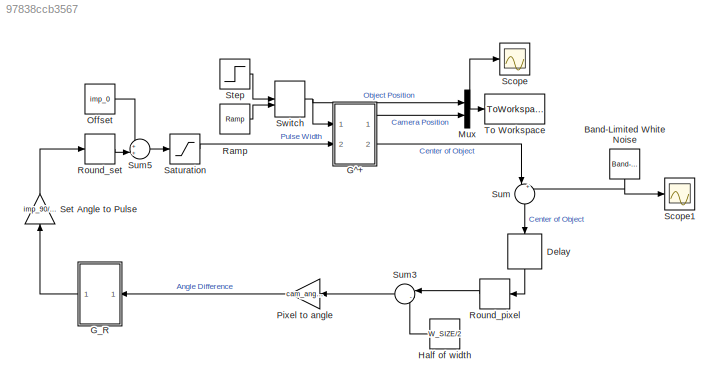
MODEL slx_97838ccb3567
KIND model
CONFIG AbsTol = auto
CONFIG FixedStep = auto
CONFIG MaxStep = 1e-3
CONFIG MinStep = auto
CONFIG RelTol = 1e-3
CONFIG SampleTimeConstraint = Unconstrained
CONFIG Solver = ode45
CONFIG SolverMode = SingleTasking
CONFIG SolverName = ode45
CONFIG StartTime = 0.0
CONFIG StopTime = 10.0
BLOCK [Reference] Band-Limited White Noise  REF=simulink/Sources/Band-Limited
White Noise
  Commented = on
  Ports = [0, 1]
  SourceBlock = simulink/Sources/Band-Limited\nWhite Noise
  SourceType = Band-Limited White Noise.
BLOCK [Delay] Delay
  Commented = through
  DelayLength = 1
  InputPortMap = u0
  Ports = [1, 1]
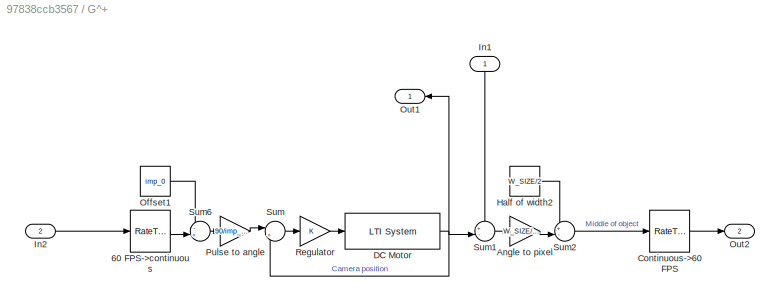
BLOCK [SubSystem] G^+
  Ports = [2, 2]
  RequestExecContextInheritance = off
  Variant = off
BLOCK [RateTransition] G^+/60 FPS->continuous
  Deterministic = off
  X0 = 6000
BLOCK [Gain] G^+/Angle to pixel
  Gain = W_SIZE/cam_angle
  OutDataTypeStr = Inherit: Inherit via internal rule
  ParamDataTypeStr = Inherit: Inherit via internal rule
  SaturateOnIntegerOverflow = off
BLOCK [RateTransition] G^+/Continuous->60 FPS
  OutPortSampleTime = 1/60
  X0 = 640
BLOCK [Reference] G^+/DC Motor  REF=cstblocks/LTI System
  Ports = [1, 1]
  SourceBlock = cstblocks/LTI System
  SourceType = LTI Block
BLOCK [Constant] G^+/Half of width2
  Value = W_SIZE/2
BLOCK [Inport] G^+/In1
  IconDisplay = Port number
BLOCK [Inport] G^+/In2
  IconDisplay = Port number
  Port = 2
BLOCK [Constant] G^+/Offset1
  Value = imp_0
BLOCK [Outport] G^+/Out1
  IconDisplay = Port number
BLOCK [Outport] G^+/Out2
  IconDisplay = Port number
  Port = 2
BLOCK [Gain] G^+/Pulse to angle
  Gain = 90/imp_90
  OutDataTypeStr = Inherit: Inherit via internal rule
  ParamDataTypeStr = Inherit: Inherit via internal rule
  SaturateOnIntegerOverflow = off
BLOCK [Gain] G^+/Regulator
  Gain = K
  OutDataTypeStr = Inherit: Inherit via internal rule
  ParamDataTypeStr = Inherit: Inherit via internal rule
  SaturateOnIntegerOverflow = off
BLOCK [Sum] G^+/Sum
  IconShape = round
  InputSameDT = off
  Inputs = |+-
  OutDataTypeStr = Inherit: Inherit via internal rule
  Ports = [2, 1]
  SaturateOnIntegerOverflow = off
BLOCK [Sum] G^+/Sum1
  IconShape = round
  InputSameDT = off
  Inputs = +-|
  OutDataTypeStr = Inherit: Inherit via internal rule
  Ports = [2, 1]
  SaturateOnIntegerOverflow = off
BLOCK [Sum] G^+/Sum2
  IconShape = round
  InputSameDT = off
  Inputs = +-|
  OutDataTypeStr = Inherit: Inherit via internal rule
  Ports = [2, 1]
  SaturateOnIntegerOverflow = off
BLOCK [Sum] G^+/Sum6
  IconShape = round
  InputSameDT = off
  Inputs = -+|
  OutDataTypeStr = Inherit: Inherit via internal rule
  Ports = [2, 1]
  SaturateOnIntegerOverflow = off
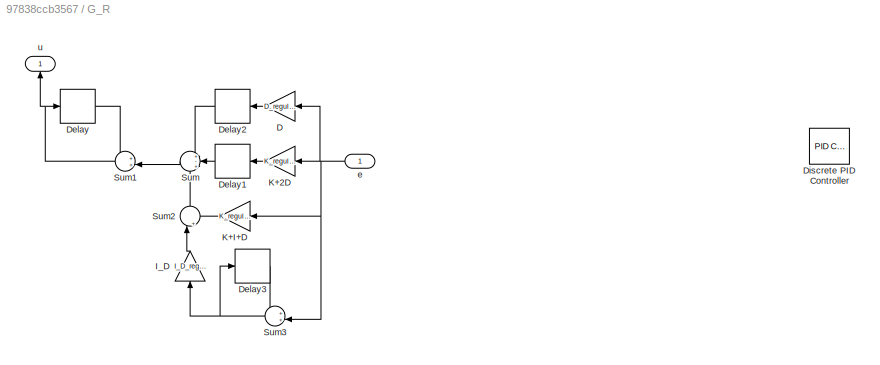
BLOCK [SubSystem] G_R
  Ports = [1, 1]
  RequestExecContextInheritance = off
  Variant = off
BLOCK [Gain] G_R/D
  Gain = D_regulator
  OutDataTypeStr = Inherit: Inherit via internal rule
  ParamDataTypeStr = Inherit: Inherit via internal rule
  SaturateOnIntegerOverflow = off
BLOCK [Delay] G_R/Delay
  DelayLength = 1
  InputPortMap = u0
  Ports = [1, 1]
BLOCK [Delay] G_R/Delay1
  DelayLength = 1
  InputPortMap = u0
  Ports = [1, 1]
BLOCK [Delay] G_R/Delay2
  InputPortMap = u0
  Ports = [1, 1]
BLOCK [Delay] G_R/Delay3
  Commented = on
  DelayLength = 1
  InputPortMap = u0
  Ports = [1, 1]
BLOCK [Reference] G_R/Discrete PID Controller  REF=simulink/Continuous/PID Controller
  Commented = on
  Ports = [1, 1]
  SourceBlock = simulink/Continuous/PID Controller
  SourceType = PID 1dof
BLOCK [Gain] G_R/I_D
  Commented = on
  Gain = I_D_regulator
  OutDataTypeStr = Inherit: Inherit via internal rule
  ParamDataTypeStr = Inherit: Inherit via internal rule
  SaturateOnIntegerOverflow = off
BLOCK [Gain] G_R/K+2D
  Gain = K_regulator+2*D_regulator
  OutDataTypeStr = Inherit: Inherit via internal rule
  ParamDataTypeStr = Inherit: Inherit via internal rule
  SaturateOnIntegerOverflow = off
BLOCK [Gain] G_R/K+I+D
  Gain = K_regulator+I_regulator+D_regulator
  OutDataTypeStr = Inherit: Inherit via internal rule
  ParamDataTypeStr = Inherit: Inherit via internal rule
  SaturateOnIntegerOverflow = off
BLOCK [Sum] G_R/Sum
  IconShape = round
  InputSameDT = off
  Inputs = +-+
  OutDataTypeStr = Inherit: Inherit via internal rule
  Ports = [3, 1]
  SaturateOnIntegerOverflow = off
BLOCK [Sum] G_R/Sum1
  IconShape = round
  InputSameDT = off
  Inputs = ++|
  OutDataTypeStr = Inherit: Inherit via internal rule
  Ports = [2, 1]
  SaturateOnIntegerOverflow = off
BLOCK [Sum] G_R/Sum2
  IconShape = round
  InputSameDT = off
  Inputs = |++
  OutDataTypeStr = Inherit: Inherit via internal rule
  Ports = [2, 1]
  SaturateOnIntegerOverflow = off
BLOCK [Sum] G_R/Sum3
  Commented = on
  IconShape = round
  InputSameDT = off
  Inputs = ++|
  OutDataTypeStr = Inherit: Inherit via internal rule
  Ports = [2, 1]
  SaturateOnIntegerOverflow = off
BLOCK [Inport] G_R/e
  IconDisplay = Port number
BLOCK [Outport] G_R/u
  IconDisplay = Port number
BLOCK [Constant] Half of width
  Value = W_SIZE/2
BLOCK [Mux] Mux
  DisplayOption = bar
  Inputs = 2
  Ports = [2, 1]
BLOCK [Constant] Offset
  Value = imp_0
BLOCK [Gain] Pixel to angle
  Gain = cam_angle/W_SIZE
  OutDataTypeStr = Inherit: Inherit via internal rule
  ParamDataTypeStr = Inherit: Inherit via internal rule
  SaturateOnIntegerOverflow = off
BLOCK [Reference] Ramp  REF=simulink/Sources/Ramp
  Ports = [0, 1]
  SourceBlock = simulink/Sources/Ramp
  SourceType = Ramp
BLOCK [Rounding] Round_pixel
BLOCK [Rounding] Round_set 
BLOCK [Saturate] Saturation
  InputPortMap = u0
  LowerLimit = 4000
  Ports = [1, 1]
  UpperLimit = 8000
BLOCK [Scope] Scope
  Ports = [1]
  ScopeSpecificationString = Simulink.scopes.TimeScopeBlockCfg('CurrentConfiguration', extmgr.ConfigurationSet(extmgr.Configuration('Core','General UI',true),extmgr.Configuration('Core','Source UI',true),extmgr.Configuration('Sources','WiredSimulink',true),extmgr.Configuration('Visuals','Time Domain',true,'SerializedDisplays',{struct('MinYLimReal','-4.18146','MaxYLimReal','37.63314','YLabelReal','','MinYLimMag','0.00000','Max...<+1428ch>
BLOCK [Scope] Scope1
  Commented = on
  Ports = [1]
  ScopeSpecificationString = Simulink.scopes.TimeScopeBlockCfg('CurrentConfiguration', extmgr.ConfigurationSet(extmgr.Configuration('Core','General UI',true),extmgr.Configuration('Core','Source UI',true),extmgr.Configuration('Sources','WiredSimulink',true,'DataLoggingVariableName','ScopeData1'),extmgr.Configuration('Visuals','Time Domain',true,'SerializedDisplays',{struct('MinYLimReal','-76.94308','MaxYLimReal','68.05254','YL...<+1441ch>
BLOCK [Gain] Set Angle to Pulse
  Gain = imp_90/90
  OutDataTypeStr = Inherit: Inherit via internal rule
  ParamDataTypeStr = Inherit: Inherit via internal rule
  RndMeth = Nearest
  SaturateOnIntegerOverflow = off
BLOCK [Step] Step
  After = 30
  SampleTime = 0
  Time = 0
BLOCK [Sum] Sum
  IconShape = round
  InputSameDT = off
  Inputs = |++
  OutDataTypeStr = Inherit: Inherit via internal rule
  Ports = [2, 1]
  SaturateOnIntegerOverflow = off
BLOCK [Sum] Sum3
  IconShape = round
  InputSameDT = off
  Inputs = |-+
  OutDataTypeStr = Inherit: Inherit via internal rule
  Ports = [2, 1]
  SaturateOnIntegerOverflow = off
BLOCK [Sum] Sum5
  IconShape = round
  InputSameDT = off
  Inputs = ++|
  OutDataTypeStr = Inherit: Inherit via internal rule
  Ports = [2, 1]
  SaturateOnIntegerOverflow = off
BLOCK [ManualSwitch] Switch
  CurrentSetting = 0
BLOCK [ToWorkspace] To Workspace
  FixptAsFi = on
  MaxDataPoints = inf
  Ports = [1]
  SampleTime = -1
  Save2DSignal = 3-D array (concatenate along third dimension)
  SaveFormat = Timeseries
  VariableName = angle
NET Band-Limited White Noise:1 -> Scope1:1, Sum:2
LINE Delay:1 -> Round_pixel:1
LINE G^+/60 FPS->continuous:1 -> G^+/Sum6:2
LINE G^+/Angle to pixel:1 -> G^+/Sum2:2
LINE G^+/Continuous->60 FPS:1 -> G^+/Out2:1
NET G^+/DC Motor:1 -> G^+/Out1:1, G^+/Sum1:2, G^+/Sum:2
LINE G^+/Half of width2:1 -> G^+/Sum2:1
LINE G^+/In1:1 -> G^+/Sum1:1
LINE G^+/In2:1 -> G^+/60 FPS->continuous:1
LINE G^+/Offset1:1 -> G^+/Sum6:1
LINE G^+/Pulse to angle:1 -> G^+/Sum:1
LINE G^+/Regulator:1 -> G^+/DC Motor:1
LINE G^+/Sum1:1 -> G^+/Angle to pixel:1
LINE G^+/Sum2:1 -> G^+/Continuous->60 FPS:1
LINE G^+/Sum6:1 -> G^+/Pulse to angle:1
LINE G^+/Sum:1 -> G^+/Regulator:1
LINE G^+:1 -> Mux:2
LINE G^+:2 -> Sum:1
LINE G_R/D:1 -> G_R/Delay2:1
LINE G_R/Delay1:1 -> G_R/Sum:2
LINE G_R/Delay2:1 -> G_R/Sum:1
LINE G_R/Delay3:1 -> G_R/Sum3:1
LINE G_R/Delay:1 -> G_R/Sum1:1
LINE G_R/I_D:1 -> G_R/Sum2:1
LINE G_R/K+2D:1 -> G_R/Delay1:1
LINE G_R/K+I+D:1 -> G_R/Sum2:2
NET G_R/Sum1:1 -> G_R/Delay:1, G_R/u:1
LINE G_R/Sum2:1 -> G_R/Sum:3
NET G_R/Sum3:1 -> G_R/Delay3:1, G_R/I_D:1
LINE G_R/Sum:1 -> G_R/Sum1:2
NET G_R/e:1 -> G_R/D:1, G_R/K+2D:1, G_R/K+I+D:1, G_R/Sum3:2
LINE G_R:1 -> Set Angle to Pulse:1
LINE Half of width:1 -> Sum3:2
NET Mux:1 -> Scope:1, To Workspace:1
LINE Offset:1 -> Sum5:1
LINE Pixel to angle:1 -> G_R:1
LINE Ramp:1 -> Switch:2
LINE Round_pixel:1 -> Sum3:1
LINE Round_set :1 -> Sum5:2
LINE Saturation:1 -> G^+:2
LINE Set Angle to Pulse:1 -> Round_set :1
LINE Step:1 -> Switch:1
LINE Sum3:1 -> Pixel to angle:1
LINE Sum5:1 -> Saturation:1
LINE Sum:1 -> Delay:1
NET Switch:1 -> G^+:1, Mux:1
note: NET lines group one-source signal fan-out (src -> all destinations, sorted); 1:1 wires keep LINE
